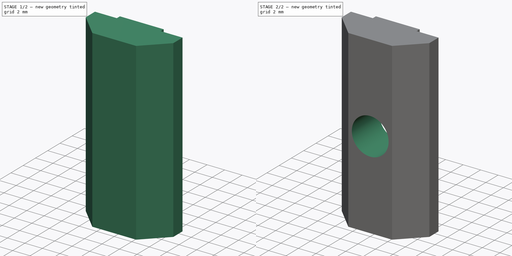
[diagram: build sequence overview — one tinted view per stage of 2, left to right]
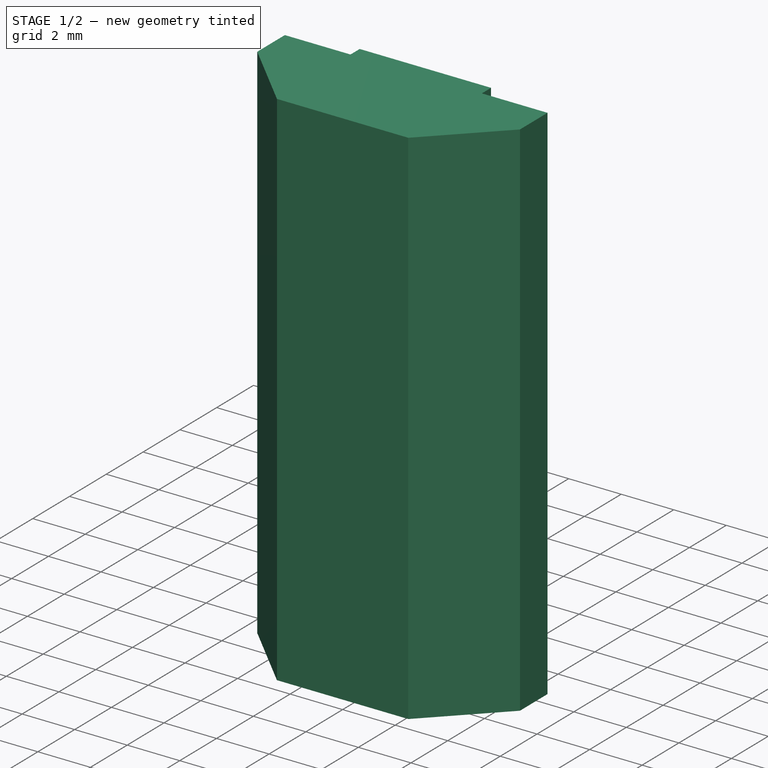
[diagram: stage 1 of 2 — iso view after this stage's code; geometry added in this stage tinted green]
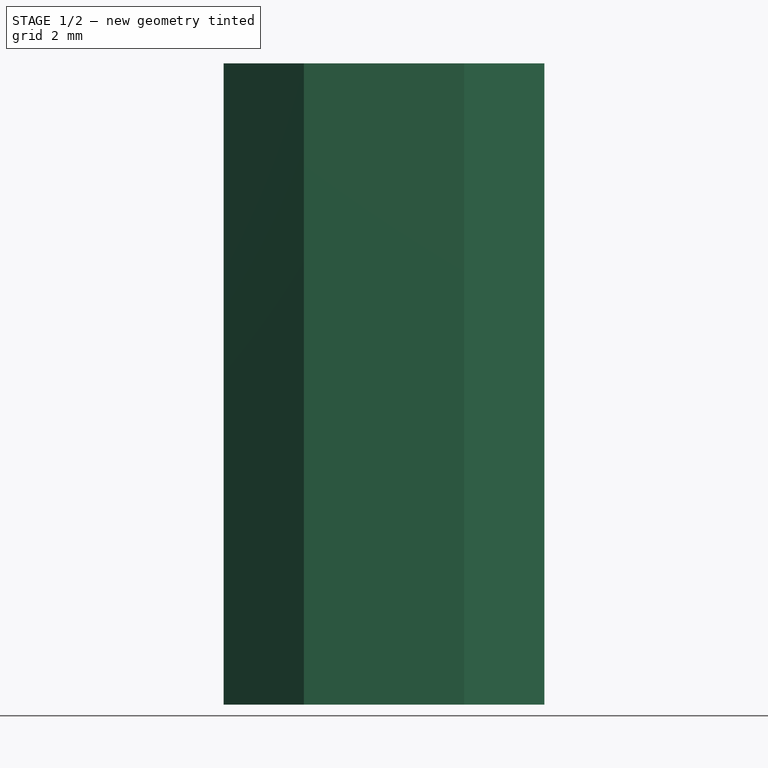
[diagram: stage 1 of 2 — front view after this stage's code; geometry added in this stage tinted green]
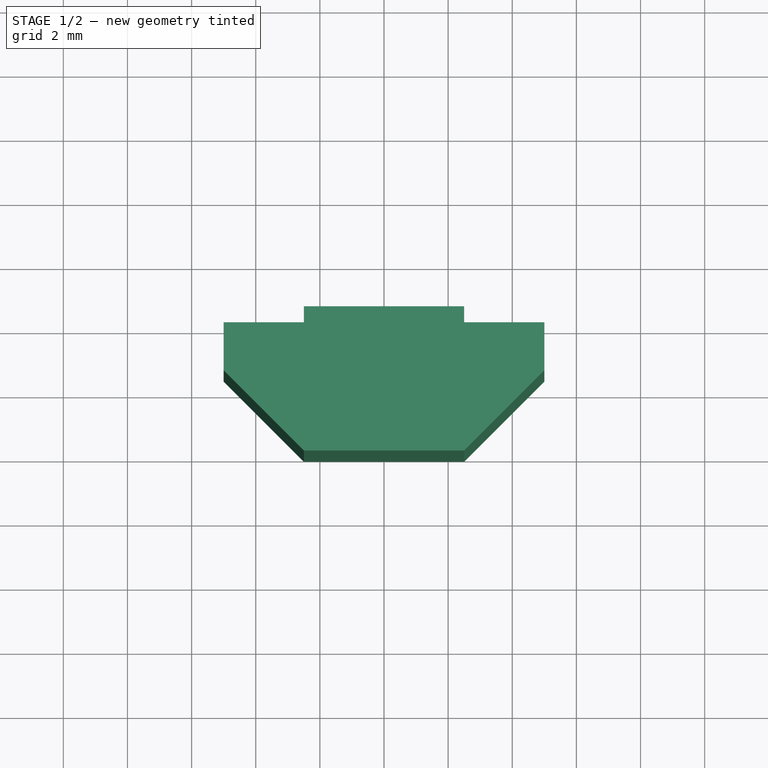
[diagram: stage 1 of 2 — top view after this stage's code; geometry added in this stage tinted green]
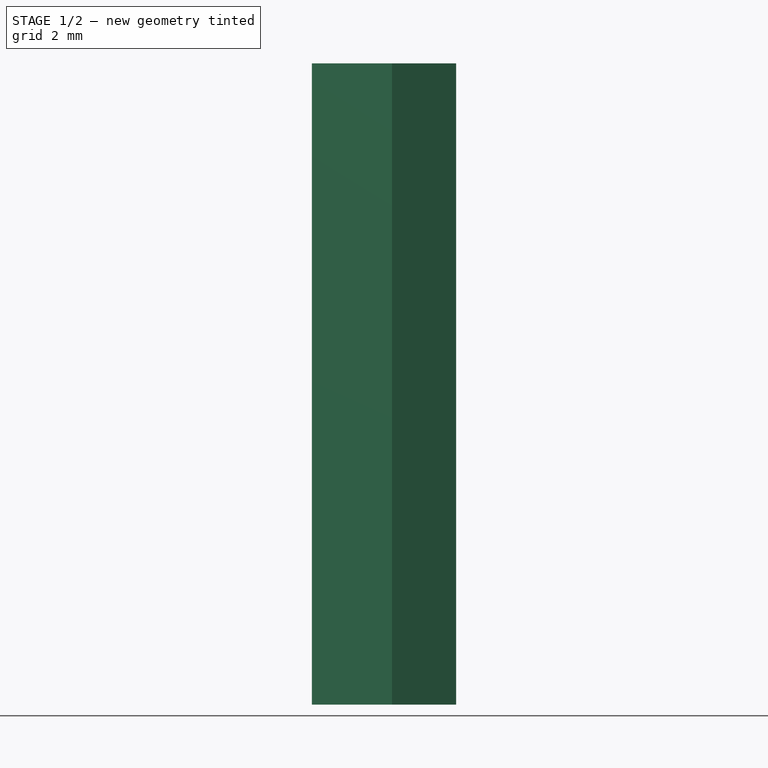
[diagram: stage 1 of 2 — right view after this stage's code; geometry added in this stage tinted green]
FCSTD DOCUMENT  (FreeCAD 0.19R20209 (Git))
Label: T-Nut-2020_M5_20
License: CreativeCommons Attribution
LicenseURL: http://creativecommons.org/licenses/by/4.0/
objects: Sketcher::SketchObject×2, PartDesign::Pad×1, PartDesign::Pocket×1, PartDesign::Body×1
note: 7 computed .brp shape members not serialized (recipe doc carries the construction recipe); baked Part::Feature solids carry a one-line shape summary decoded from their .brp

FEATURE [Sketcher::SketchObject] Sketch
  MapMode = 5
  Support = -> [XY_Plane]
  sketch-geometry (10):
    g0: LineSegment StartX=-5 StartY=4 StartZ=0 EndX=-2.5 EndY=4 EndZ=0
    g1: LineSegment StartX=5 StartY=4 StartZ=0 EndX=5 EndY=2.5 EndZ=0
    g2: LineSegment StartX=5 StartY=2.5 StartZ=0 EndX=2.5 EndY=0 EndZ=0
    g3: LineSegment StartX=2.5 StartY=0 StartZ=0 EndX=-2.5 EndY=0 EndZ=0
    g4: LineSegment StartX=-2.5 StartY=0 StartZ=0 EndX=-5 EndY=2.5 EndZ=0
    g5: LineSegment StartX=-5 StartY=2.5 StartZ=0 EndX=-5 EndY=4 EndZ=0
    g6: LineSegment StartX=-2.5 StartY=4.5 StartZ=0 EndX=2.5 EndY=4.5 EndZ=0
    g7: LineSegment StartX=2.5 StartY=4.5 StartZ=0 EndX=2.5 EndY=4 EndZ=0
    g8: LineSegment StartX=-2.5 StartY=4 StartZ=0 EndX=-2.5 EndY=4.5 EndZ=0
    g9: LineSegment StartX=2.5 StartY=4 StartZ=0 EndX=5 EndY=4 EndZ=0
  constraints (26):
    c: Coincident(g9,g1)
    c: Vertical(g1)
    c: Coincident(g1,g2)
    c: Coincident(g2,g3)
    c: Coincident(g4,g5)
    c: Vertical(g5)
    c: Coincident(g0,g5)
    c: Symmetric(g9,g0,g-2)
    c: DistanceX(g0,g9) = 10
    c: DistanceX(g3,g2) = 5
    c: DistanceY(g2,g9) = 4
    c: Horizontal(g1,g4)
    c: Horizontal(g3)
    c: Coincident(g3,g4)
    c: Symmetric(g3,g2,g-1)
    c: Angle(g3,g4) = 2.35619
    c: Coincident(g6,g7)
    c: Coincident(g8,g6)
    c: Vertical(g7)
    c: Vertical(g8)
    c: Equal(g6,g3)
    c: Symmetric(g6,g6,g-2)
    c: Coincident(g0,g8)
    c: Coincident(g9,g7)
    c: Tangent(g0,g9)
    c: DistanceY(g7,g6) = 0.5
FEATURE [PartDesign::Pad] Pad
  AllowMultiFace = false
  Length = 20
  Length2 = 100
  Midplane = true
  Profile = -> Sketch
  Refine = true
  Type = 0
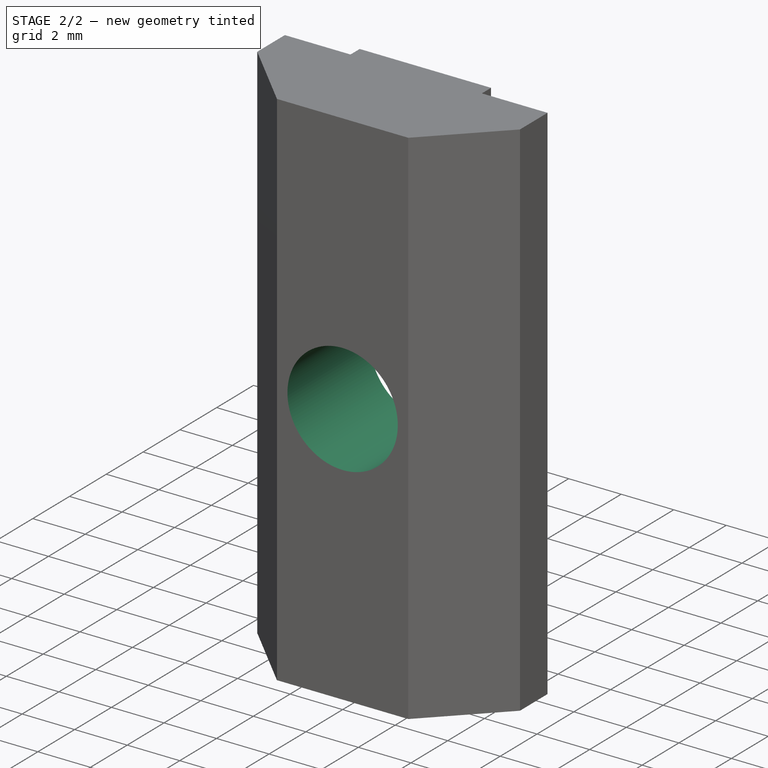
[diagram: stage 2 of 2 — iso view after this stage's code; geometry added in this stage tinted green]
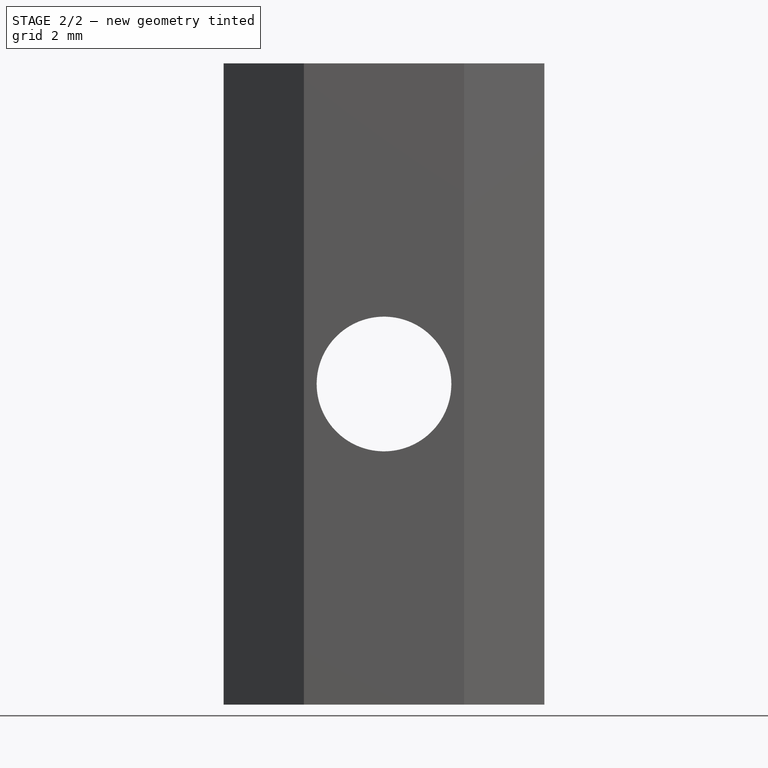
[diagram: stage 2 of 2 — front view after this stage's code; geometry added in this stage tinted green]
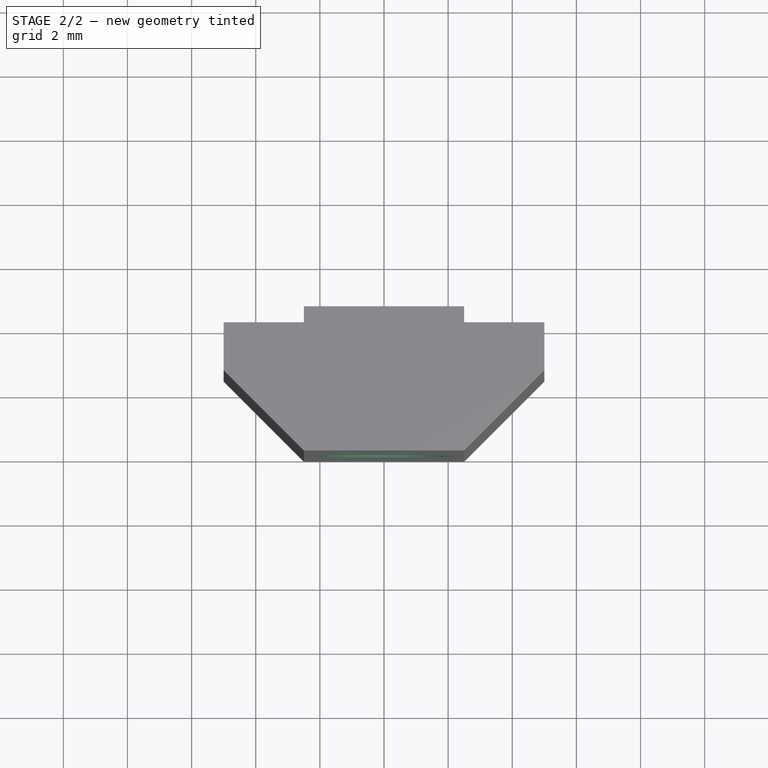
[diagram: stage 2 of 2 — top view after this stage's code; geometry added in this stage tinted green]
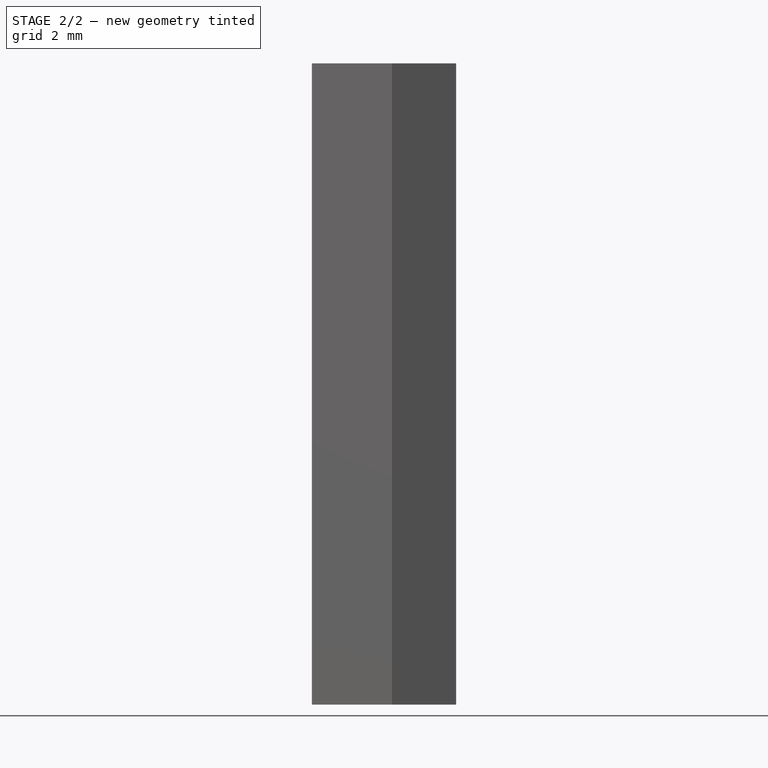
[diagram: stage 2 of 2 — right view after this stage's code; geometry added in this stage tinted green]
FEATURE [Sketcher::SketchObject] Sketch001
  MapMode = 5
  Placement = pos=(0,0,0) rot=(1,0,0;1.5708rad)
  Support = -> [XZ_Plane]
  sketch-geometry (1):
    g0: Circle CenterX=0 CenterY=0 CenterZ=0 NormalX=0 NormalY=0 NormalZ=1 AngleXU=0 Radius=2.1
  constraints (2):
    c: Diameter(g0) = 4.2
    c: Coincident(g0,g-1)
FEATURE [PartDesign::Pocket] Pocket
  AllowMultiFace = false
  BaseFeature = -> Pad
  Length = 5
  Length2 = 100
  Profile = -> Sketch001
  Refine = true
  Type = 0
FEATURE [PartDesign::Body] Body
  Group = -> [Sketch,Pad,Sketch001,Pocket]
  Origin = -> Origin
  Tip = -> Pocket
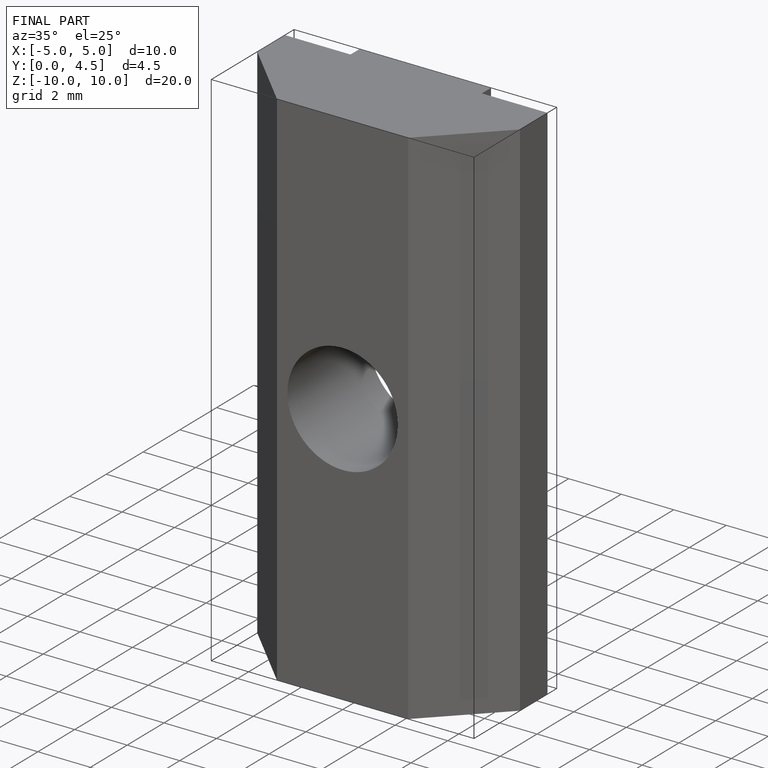
[diagram: finished part — iso view with bounding-box wireframe]
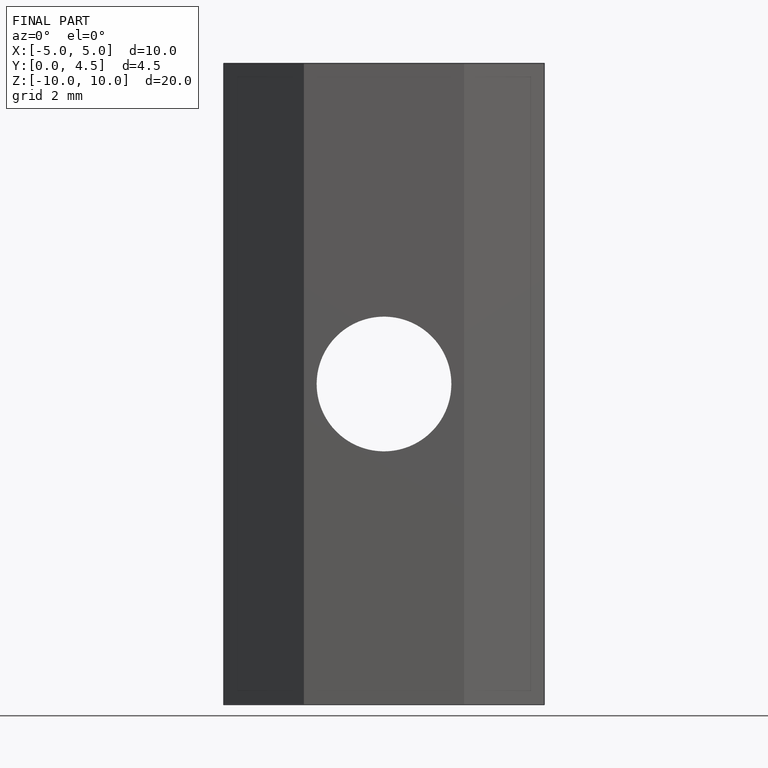
[diagram: finished part — front view with bounding-box wireframe]
